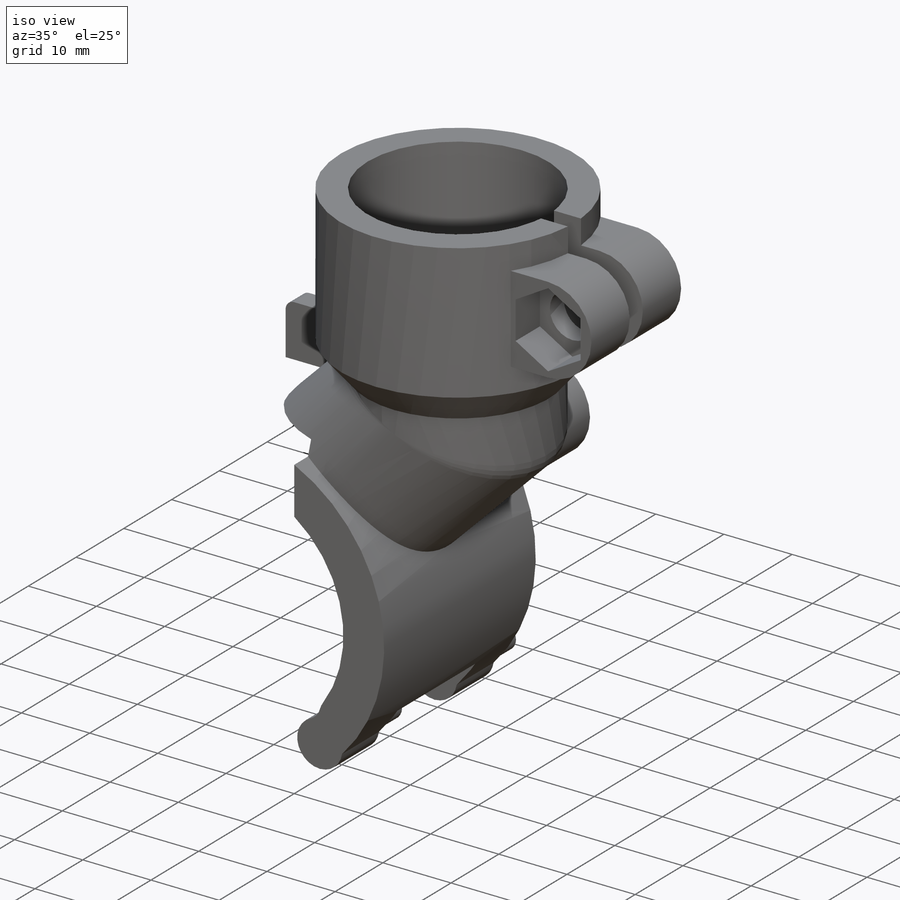
[diagram: iso view]
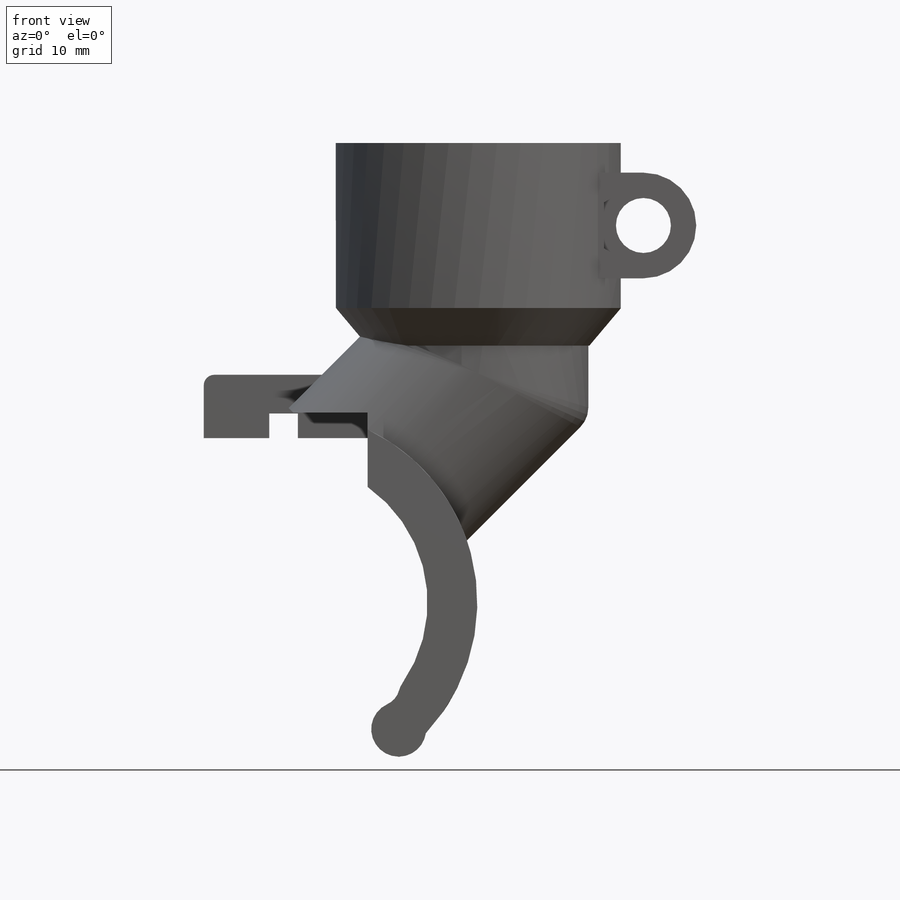
[diagram: front view]
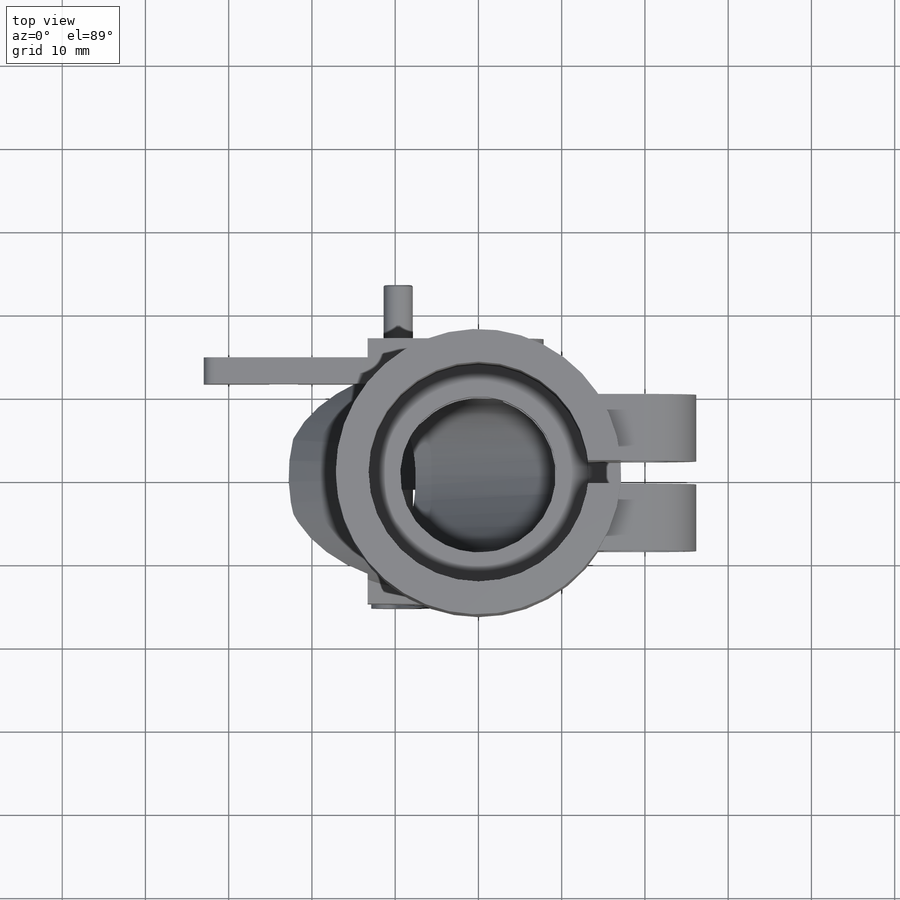
[diagram: top view]
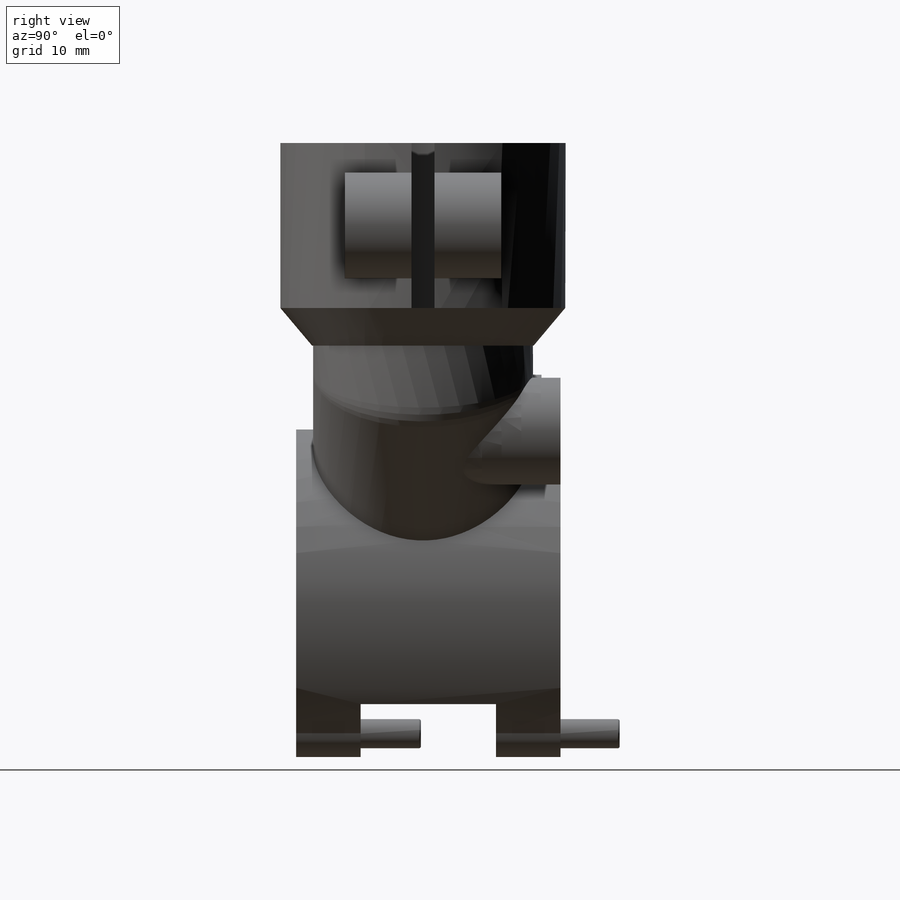
[diagram: right view]
SOLIDWORKS PART (.sldprt)
format: sldprt  version: not decoded by parser v0  size: 760,320 bytes
history: native  units: mm
features: sketch x29, cut_extrude x16, fillet x10, extrude x8, plane x6, sweep x2, material x1 (+13 scaffold rows collapsed)
feature tree (85):
  scaffold x13  (default folders/planes/origin — collapsed)
  material  "ABS"
  sketch  "Sketch1"  dims[D1=34.29mm]
  extrude  "Boss-Extrude1"  Depth=19.812mm
  plane  "Plane1"  Offset=4.5212mm
  sketch  "Sketch2"  dims[D1=26.67mm]
  sketch  "3DSketch2"  dims[c1.D4=2.54mm c1.D1=~24.077758mm c2.D1=135.0deg c2.D2=7.874mm c2.D3=19.05mm]
  sketch  "Sketch3"  dims[D1=26.416mm]
  sweep  "Sweep6"
  plane  "Plane2"  Offset=16.51mm
  fillet  "Fillet5"  Radius=3.302mm
  sketch  "Sketch5"  dims[c1.D3=6.4135mm c1.D1=41.021mm c1.D2=28.194mm c2.D3=14.732mm]
  extrude  "Boss-Extrude2"  Depth=19.05mm
  sketch  "Sketch6"  dims[D1=3.937mm]
  cut_extrude  "Cut-Extrude1"  Depth=23.114mm
  sketch  "Sketch8"  dims[D1=3.937mm]
  cut_extrude  "Cut-Extrude4"  Depth=20.066mm
  sketch  "Sketch10"  dims[D1=3.81mm]
  cut_extrude  "Cut-Extrude5"  Depth=4.826mm
  sketch  "Sketch11"
  sweep  "Cut-Sweep1"
  sketch  "3DSketch2<3>"
  sketch  "Sketch12"  dims[c1.D1=8.128mm c1.D2=3.175mm c1.D3=2.3495mm c1.D4=2.159mm c2.D3=5.0546mm c2.D4=2.286mm]
  extrude  "Boss-Extrude3"  Depth=19.685mm
  sketch  "Sketch13"  dims[D1=3.429mm D2=7.874mm D3=4.6482mm]
  cut_extrude  "Cut-Extrude6"  Depth=4.953mm
  fillet  "Fillet7"  Radius=1.27mm
  fillet  "Fillet9"  Radius=1.27mm
  sketch  "Sketch14"  dims[D1=3.302mm D2=2.794mm]
  cut_extrude  "Cut-Extrude7"  [1 undecoded]
  sketch  "Sketch15"  dims[c1.D1=46.736mm c1.D2=46.736mm c1.D3=19.0246mm c2.D1=17.018mm c2.D2=24.13mm c2.D3=~24.13006mm c3.D2=~26.182236mm c3.D3=~26.182236mm c4.D2=24.13mm]
  extrude  "Boss-Extrude9"  Depth=31.75mm
  sketch  "Sketch35"  dims[D3=6.604mm D1=0.9906mm D2=0.4064mm]
  extrude  "Boss-Extrude10"  Depth=31.75mm
  sketch  "Sketch37"
  cut_extrude  "Cut-Extrude19"  [1 undecoded]
  fillet  "Fillet10"  Radius=2.54mm
  fillet  "Fillet11"  Radius=2.54mm
  sketch  "Sketch39"  dims[D1=7.747mm D2=7.747mm]
  cut_extrude  "Cut-Extrude20"  [1 undecoded]
  plane  "Plane5"  Offset=7.62mm
  sketch  "Sketch40"
  cut_extrude  "Cut-Extrude21"  Depth=31.75mm
  fillet  "Fillet12"  Radius=1.27mm
  sketch  "Sketch41"
  cut_extrude  "Cut-Extrude22"  Depth=1.905mm
  fillet  "Fillet14"  Radius=0.254mm
  sketch  "Sketch51"  dims[D1=3.5052mm D2=2.794mm D3=3.3274mm]
  extrude  "Boss-Extrude14"  Depth=14.986mm
  fillet  "Fillet18"  Radius=0.254mm
  sketch  "Sketch54"
  extrude  "Boss-Extrude15"  Depth=7.112mm
  fillet  "Fillet19"  Radius=0.254mm
  plane  "Plane3"  Offset=8.89mm
  plane  "Plane4"  Offset=13.462mm
  sketch  "Sketch31"  dims[D1=18.796mm D2=12.7mm D3=3.556mm]
  extrude  "Boss-Extrude8"  Depth=12.7mm
  sketch  "Sketch32"
  cut_extrude  "Cut-Extrude16"  [1 undecoded]
  sketch  "Sketch33"  dims[D1=6.604mm]
  cut_extrude  "Cut-Extrude17"  [1 undecoded]
  sketch  "Sketch34"  dims[D1=19.812mm D2=2.7432mm]
  cut_extrude  "Cut-Extrude18"  Depth=12.7mm
  sketch  "Sketch55"
  cut_extrude  "Cut-Extrude25"  [1 undecoded]
  plane  "Plane8"
  sketch  "Sketch58"
  cut_extrude  "Cut-Extrude26"  Depth=7.112mm
  fillet  "Fillet20"  Radius=2.54mm
  sketch  "Sketch59"
  cut_extrude  "Cut-Extrude27"  [1 undecoded]
  sketch  "Sketch60"  dims[D1=9.525mm]
  cut_extrude  "Cut-Extrude28"  Depth=5.08mm
decode coverage: 46 of 65 modeling features carry decoded parameters
note: ~ marks probable driven/reference dimensions
note: 7 parameter values undecoded
summary: no parameter record found for 7 features
note: suppression state not decoded; provenance and decode notes live in map.json
